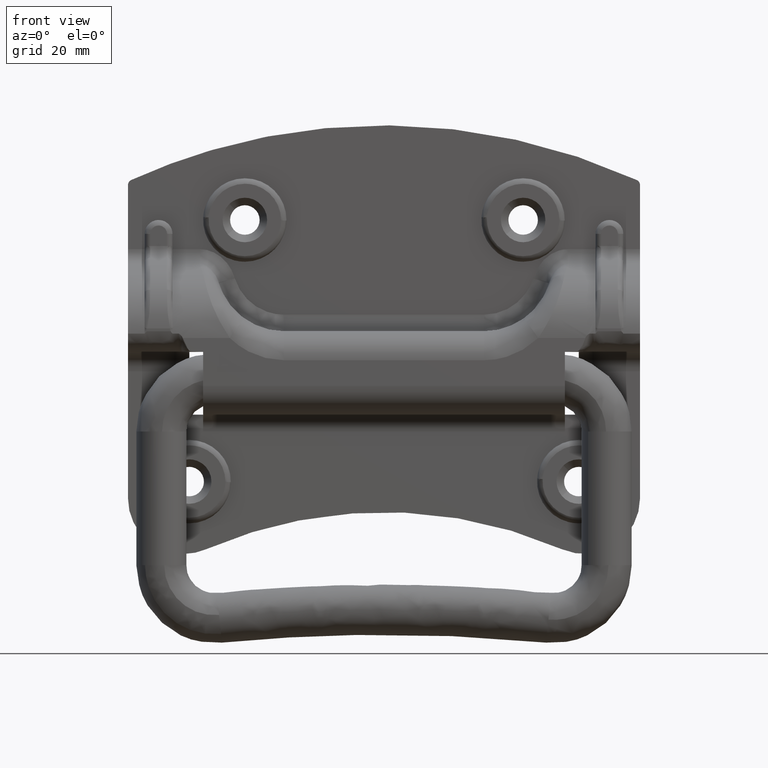
[diagram: clean part render]
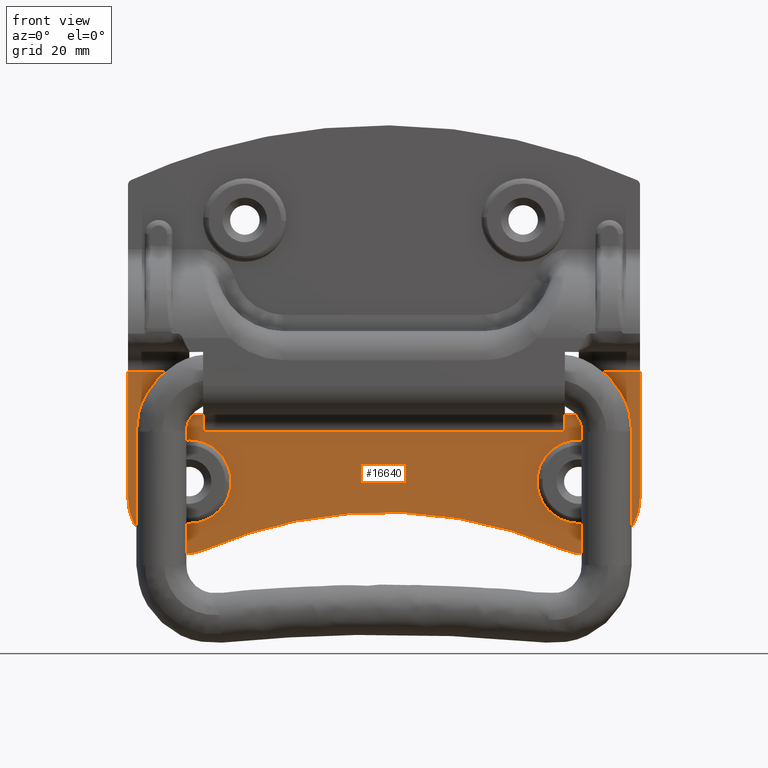
[diagram: same view with one face highlighted and labeled with its STEP entity id]
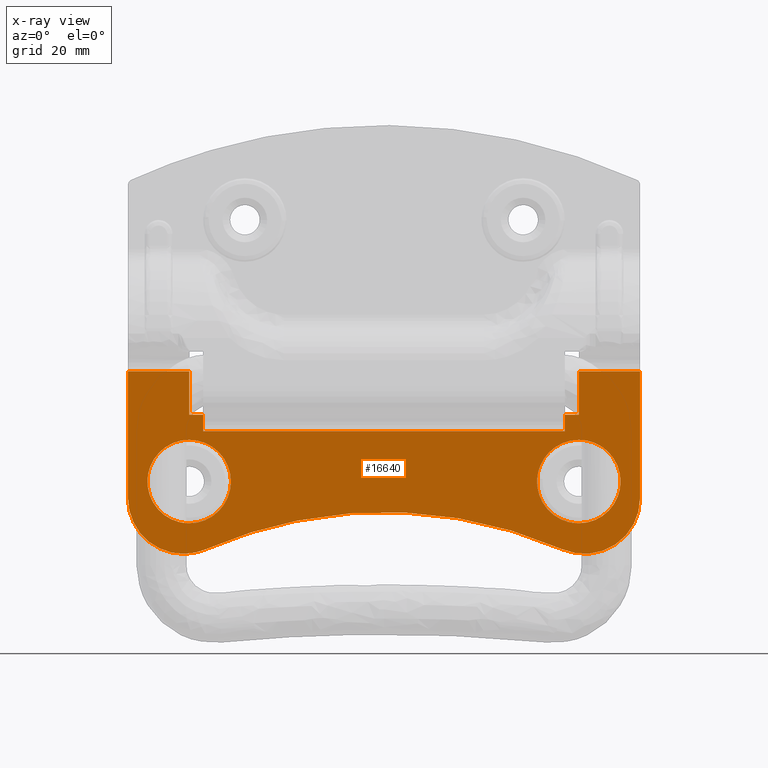
[diagram: x-ray of the same camera — body ghosted, the highlighted face saturated]
A machine part, front view. The second image highlights one B-rep face of the part: STEP entity #16640.
The next image is the same camera in x-ray: the body ghosted, the highlighted face saturated — about 0% of this face is hidden behind the body in this view.
In plain terms, the highlighted face is a freeform B-spline surface patch.
Its self-contained STEP definition (entity closure, byte-faithful):
#3819=CARTESIAN_POINT('',(-42.481742553789722,5.499999997269244,-17.977000612991219));
#3820=VERTEX_POINT('',#3819);
#3831=CARTESIAN_POINT('',(-35.0,5.499999999999840,-26.0));
#3832=VERTEX_POINT('',#3831);
#3833=CARTESIAN_POINT('',(-42.481742553789722,5.499999997269244,-17.977000612991219));
#3834=CARTESIAN_POINT('',(-42.508567905632333,5.499999997488488,-18.360567019971381));
#3835=CARTESIAN_POINT('',(-42.502192040018052,5.499999997986840,-19.260401928433112));
#3836=CARTESIAN_POINT('',(-42.251313222227097,5.499999998667409,-20.589821825501499));
#3837=CARTESIAN_POINT('',(-41.787228694354852,5.499999999207884,-21.755562374506152));
#3838=CARTESIAN_POINT('',(-41.158557307930572,5.499999999664079,-22.837995131761240));
#3839=CARTESIAN_POINT('',(-40.444065227010192,5.499999999983757,-23.710040896703291));
#3840=CARTESIAN_POINT('',(-39.500735324841997,5.500000000223445,-24.533585469607829));
#3841=CARTESIAN_POINT('',(-38.364103054491821,5.500000000366519,-25.262929288747820));
#3842=CARTESIAN_POINT('',(-36.826384232358777,5.500000000338392,-25.850936581439161));
#3843=CARTESIAN_POINT('',(-35.608817239031183,5.500000000140316,-26.000147889416109));
#3844=CARTESIAN_POINT('',(-35.0,5.499999999999840,-26.0));
#3845=B_SPLINE_CURVE_WITH_KNOTS('',3,(#3833,#3834,#3835,#3836,#3837,#3838,#3839,#3840,#3841,#3842,#3843,#3844),.UNSPECIFIED.,.F.,.U.,(4,1,1,1,1,1,1,1,1,4),(0.000000189409462,1.153520291072535,2.691602671902988,4.037426577012779,4.902583631816174,6.440603258899998,7.401905476487116,8.651584390666816,10.478049955776140,12.304480852552130),.UNSPECIFIED.);
#3846=EDGE_CURVE('',#3820,#3832,#3845,.T.);
#3848=CARTESIAN_POINT('',(-27.500592168472402,5.499999997308239,-18.594245299203291));
#3849=VERTEX_POINT('',#3848);
#3850=CARTESIAN_POINT('',(-35.0,5.499999999999840,-26.0));
#3851=CARTESIAN_POINT('',(-34.147724870356562,5.500000000000066,-26.000646562091440));
#3852=CARTESIAN_POINT('',(-32.930846841209387,5.499999999923587,-25.790145493146280));
#3853=CARTESIAN_POINT('',(-31.226480867853361,5.499999999651458,-25.041515176178368));
#3854=CARTESIAN_POINT('',(-30.048480971382990,5.499999999349228,-24.209751335453909));
#3855=CARTESIAN_POINT('',(-28.870580894520518,5.499999998883136,-22.927523010932230));
#3856=CARTESIAN_POINT('',(-28.056447777584470,5.499999998370964,-21.518321247791580));
#3857=CARTESIAN_POINT('',(-27.598367366284769,5.499999997805723,-19.962646614729749));
#3858=CARTESIAN_POINT('',(-27.505926764169139,5.499999997462896,-19.020279163105648));
#3859=CARTESIAN_POINT('',(-27.500592168472402,5.499999997308239,-18.594245299203291));
#3860=B_SPLINE_CURVE_WITH_KNOTS('',3,(#3850,#3851,#3852,#3853,#3854,#3855,#3856,#3857,#3858,#3859),.UNSPECIFIED.,.F.,.U.,(4,1,1,1,1,1,1,4),(0.000000170211331,2.556484266738611,3.652125915543310,5.569496617553640,6.847696757078398,8.856402364429144,10.408582803983020,11.686796831997800),.UNSPECIFIED.);
#3861=EDGE_CURVE('',#3832,#3849,#3860,.T.);
#3944=CARTESIAN_POINT('',(-35.0,5.499999999999840,-11.0));
#3945=VERTEX_POINT('',#3944);
#3946=CARTESIAN_POINT('',(-27.500592168472402,5.499999997308239,-18.594245299203291));
#3947=CARTESIAN_POINT('',(-27.494307283949841,5.499999997595918,-18.099490043975589));
#3948=CARTESIAN_POINT('',(-27.572191845783991,5.499999998097677,-17.201648577864169));
#3949=CARTESIAN_POINT('',(-27.971367982742670,5.499999998855806,-15.734734194082890));
#3950=CARTESIAN_POINT('',(-28.719016406471699,5.499999999538116,-14.262059739924050));
#3951=CARTESIAN_POINT('',(-29.804795664639020,5.500000000011758,-13.017498248203641));
#3952=CARTESIAN_POINT('',(-31.064991323620340,5.500000000279339,-12.060625495865640));
#3953=CARTESIAN_POINT('',(-32.209481896756238,5.500000000345722,-11.496887437577680));
#3954=CARTESIAN_POINT('',(-33.577500364817809,5.500000000266654,-11.096871651193450));
#3955=CARTESIAN_POINT('',(-34.443340880443003,5.500000000126248,-10.999895891736850));
#3956=CARTESIAN_POINT('',(-35.0,5.499999999999840,-11.0));
#3957=B_SPLINE_CURVE_WITH_KNOTS('',3,(#3946,#3947,#3948,#3949,#3950,#3951,#3952,#3953,#3954,#3955,#3956),.UNSPECIFIED.,.F.,.U.,(4,1,1,1,1,1,1,1,4),(0.000000184044325,1.484378964615754,2.690496661113842,4.546016861821558,6.401477274290186,7.607601255560499,9.277583112677187,10.205342741398139,11.875295939521900),.UNSPECIFIED.);
#3958=EDGE_CURVE('',#3849,#3945,#3957,.T.);
#3960=CARTESIAN_POINT('',(-35.0,5.499999999999840,-11.0));
#3961=CARTESIAN_POINT('',(-35.469061929922958,5.499999999999852,-10.999964253768210));
#3962=CARTESIAN_POINT('',(-36.495134251029107,5.499999999962074,-11.096527352311091));
#3963=CARTESIAN_POINT('',(-38.158454959819103,5.499999999761490,-11.609042753803530));
#3964=CARTESIAN_POINT('',(-39.621327582735482,5.499999999409480,-12.508328945613380));
#3965=CARTESIAN_POINT('',(-40.876887135583573,5.499999998923594,-13.750078756935860));
#3966=CARTESIAN_POINT('',(-41.605226343724837,5.499999998488358,-14.861978458047400));
#3967=CARTESIAN_POINT('',(-42.228381081944583,5.499999997917858,-16.319720751102700));
#3968=CARTESIAN_POINT('',(-42.432970221000268,5.499999997543953,-17.275055523593259));
#3969=CARTESIAN_POINT('',(-42.481742553789722,5.499999997269244,-17.977000612991219));
#3970=B_SPLINE_CURVE_WITH_KNOTS('',3,(#3960,#3961,#3962,#3963,#3964,#3965,#3966,#3967,#3968,#3969),.UNSPECIFIED.,.F.,.U.,(4,1,1,1,1,1,1,4),(0.000000162507561,1.407199140064691,3.078257524233408,5.189087780840575,6.508269569357324,8.355257851063371,9.146813726459770,11.257612765952590),.UNSPECIFIED.);
#3971=EDGE_CURVE('',#3945,#3820,#3970,.T.);
#4228=CARTESIAN_POINT('',(27.518257446210288,5.499999997269244,-17.977000612991219));
#4229=VERTEX_POINT('',#4228);
#4240=CARTESIAN_POINT('',(35.0,5.499999999999840,-26.0));
#4241=VERTEX_POINT('',#4240);
#4242=CARTESIAN_POINT('',(27.518257446210288,5.499999997269244,-17.977000612991219));
#4243=CARTESIAN_POINT('',(27.457321443380039,5.499999997762714,-18.840087502559118));
#4244=CARTESIAN_POINT('',(27.605780159770831,5.499999998519030,-20.263350544882879));
#4245=CARTESIAN_POINT('',(28.260059545677510,5.499999999264047,-21.876343133846429));
#4246=CARTESIAN_POINT('',(28.940408868933240,5.499999999712206,-22.965676069315570));
#4247=CARTESIAN_POINT('',(29.753603382222970,5.500000000054807,-23.920260586449380));
#4248=CARTESIAN_POINT('',(30.881312705160092,5.500000000300607,-24.830971232588521));
#4249=CARTESIAN_POINT('',(32.084943979042727,5.500000000366060,-25.448697091644060));
#4250=CARTESIAN_POINT('',(33.462019037358793,5.500000000291413,-25.886216419718789));
#4251=CARTESIAN_POINT('',(34.391177928327060,5.500000000140356,-26.000139633820140));
#4252=CARTESIAN_POINT('',(35.0,5.499999999999840,-26.0));
#4253=B_SPLINE_CURVE_WITH_KNOTS('',3,(#4242,#4243,#4244,#4245,#4246,#4247,#4248,#4249,#4250,#4251,#4252),.UNSPECIFIED.,.F.,.U.,(4,1,1,1,1,1,1,1,4),(0.000000189392864,2.595466828539264,4.229671591054864,5.190959761615572,6.440603258894309,7.978671417311456,9.516748037607719,10.478049955775690,12.304480852552119),.UNSPECIFIED.);
#4254=EDGE_CURVE('',#4229,#4241,#4253,.T.);
#4256=CARTESIAN_POINT('',(42.499407831527598,5.499999997308239,-18.594245299203291));
#4257=VERTEX_POINT('',#4256);
#4258=CARTESIAN_POINT('',(35.0,5.499999999999840,-26.0));
#4259=CARTESIAN_POINT('',(35.486934809167813,5.499999999999846,-26.000034943229409));
#4260=CARTESIAN_POINT('',(36.552139430473552,5.499999999962046,-25.895977799657381));
#4261=CARTESIAN_POINT('',(38.156727081679790,5.499999999774953,-25.381320112761379));
#4262=CARTESIAN_POINT('',(39.543889881234293,5.499999999467416,-24.534929893428231));
#4263=CARTESIAN_POINT('',(40.812216128005460,5.499999999033813,-23.342112875269478));
#4264=CARTESIAN_POINT('',(41.753863072061982,5.499999998523649,-21.938414605085491));
#4265=CARTESIAN_POINT('',(42.358189819376229,5.499999997904929,-20.236000905912551));
#4266=CARTESIAN_POINT('',(42.492604419223859,5.499999997507264,-19.142020053999708));
#4267=CARTESIAN_POINT('',(42.499407831527598,5.499999997308239,-18.594245299203291));
#4268=B_SPLINE_CURVE_WITH_KNOTS('',3,(#4258,#4259,#4260,#4261,#4262,#4263,#4264,#4265,#4266,#4267),.UNSPECIFIED.,.F.,.U.,(4,1,1,1,1,1,1,4),(0.000000170205601,1.460820458666598,3.195613833529805,5.021681826891865,6.299866925079172,8.399877557317442,10.043351114334969,11.686796831997659),.UNSPECIFIED.);
#4269=EDGE_CURVE('',#4241,#4257,#4268,.T.);
#4351=CARTESIAN_POINT('',(35.0,5.499999999999840,-11.0));
#4352=VERTEX_POINT('',#4351);
#4353=CARTESIAN_POINT('',(42.499407831527598,5.499999997308239,-18.594245299203291));
#4354=CARTESIAN_POINT('',(42.508668396823083,5.499999997721852,-17.882986131036279));
#4355=CARTESIAN_POINT('',(42.362680112918241,5.499999998333829,-16.767961928029070));
#4356=CARTESIAN_POINT('',(41.795218792944063,5.499999999097955,-15.224608272269800));
#4357=CARTESIAN_POINT('',(40.998711365618213,5.499999999689720,-13.889286343354719));
#4358=CARTESIAN_POINT('',(39.917705769084009,5.500000000093593,-12.767205297760681));
#4359=CARTESIAN_POINT('',(38.662883469015199,5.500000000305267,-11.908969107323101));
#4360=CARTESIAN_POINT('',(37.102645098462482,5.500000000355120,-11.211003447123231));
#4361=CARTESIAN_POINT('',(35.804124687223123,5.500000000182593,-10.999484870945039));
#4362=CARTESIAN_POINT('',(35.0,5.499999999999840,-11.0));
#4363=B_SPLINE_CURVE_WITH_KNOTS('',3,(#4353,#4354,#4355,#4356,#4357,#4358,#4359,#4360,#4361,#4362),.UNSPECIFIED.,.F.,.U.,(4,1,1,1,1,1,1,4),(0.000000184038882,2.133834974312626,3.339935586696347,4.917153398430021,6.772628925661738,7.978693161514514,9.463131408615009,11.875295939521900),.UNSPECIFIED.);
#4364=EDGE_CURVE('',#4257,#4352,#4363,.T.);
#4366=CARTESIAN_POINT('',(35.0,5.499999999999840,-11.0));
#4367=CARTESIAN_POINT('',(34.413670676507110,5.499999999999874,-10.999894813643280));
#4368=CARTESIAN_POINT('',(33.241052464769403,5.499999999945771,-11.138174216093750));
#4369=CARTESIAN_POINT('',(31.495188388766071,5.499999999695006,-11.778884716447360));
#4370=CARTESIAN_POINT('',(30.107177813699249,5.499999999320279,-12.736450776388439));
#4371=CARTESIAN_POINT('',(29.144992657444242,5.499999998915770,-13.769833076752080));
#4372=CARTESIAN_POINT('',(28.444844877306561,5.499999998518190,-14.785787004195400));
#4373=CARTESIAN_POINT('',(27.805894460671549,5.499999997985923,-16.145755462397339));
#4374=CARTESIAN_POINT('',(27.565057055219889,5.499999997532555,-17.304332961132229));
#4375=CARTESIAN_POINT('',(27.518257446210288,5.499999997269244,-17.977000612991219));
#4376=B_SPLINE_CURVE_WITH_KNOTS('',3,(#4366,#4367,#4368,#4369,#4370,#4371,#4372,#4373,#4374,#4375),.UNSPECIFIED.,.F.,.U.,(4,1,1,1,1,1,1,4),(0.000000162488385,1.758978933395257,3.518010393839347,5.540909743650097,6.772132799290824,7.739605501221990,9.234778077383478,11.257612765952601),.UNSPECIFIED.);
#4377=EDGE_CURVE('',#4352,#4229,#4376,.T.);
#5454=CARTESIAN_POINT('',(-46.000500000000002,5.499999999999840,-21.500255710489149));
#5455=VERTEX_POINT('',#5454);
#5480=CARTESIAN_POINT('',(-32.000444444444447,5.499999999999840,-30.665382853768151));
#5481=VERTEX_POINT('',#5480);
#5487=CARTESIAN_POINT('',(-46.000500000000002,5.499999999999840,-21.500255710489149));
#5488=CARTESIAN_POINT('',(-46.000699082443383,5.499999999999853,-22.326223741991441));
#5489=CARTESIAN_POINT('',(-45.813960144823163,5.499999999999814,-23.823201004922879));
#5490=CARTESIAN_POINT('',(-45.034467095497689,5.499999999999867,-25.968959344305048));
#5491=CARTESIAN_POINT('',(-43.809704883099641,5.499999999999838,-27.900125607014729));
#5492=CARTESIAN_POINT('',(-42.196719274704670,5.499999999999844,-29.449931846392790));
#5493=CARTESIAN_POINT('',(-40.515667995647611,5.499999999999842,-30.477295092017641));
#5494=CARTESIAN_POINT('',(-38.639142737717812,5.499999999999846,-31.223377484754550));
#5495=CARTESIAN_POINT('',(-36.791421110349887,5.499999999999838,-31.539063745497540));
#5496=CARTESIAN_POINT('',(-34.412113020029132,5.499999999999847,-31.462618128273920));
#5497=CARTESIAN_POINT('',(-32.946549644554381,5.499999999999841,-31.078917052722531));
#5498=CARTESIAN_POINT('',(-32.000444444444447,5.499999999999840,-30.665382853768151));
#5499=B_SPLINE_CURVE_WITH_KNOTS('',3,(#5487,#5488,#5489,#5490,#5491,#5492,#5493,#5494,#5495,#5496,#5497,#5498),.UNSPECIFIED.,.F.,.U.,(4,1,1,1,1,1,1,1,1,4),(0.000000037315907,2.477897111639948,4.491229526797056,6.814320790391898,9.292223452452822,11.150622587147421,12.699324482743179,15.332160783704881,16.726010618363869,19.823390429529901),.UNSPECIFIED.);
#5500=EDGE_CURVE('',#5455,#5481,#5499,.T.);
#5519=CARTESIAN_POINT('',(32.0,5.499999999999840,-30.665188880706548));
#5520=VERTEX_POINT('',#5519);
#5521=CARTESIAN_POINT('',(32.0,5.499999999999840,-30.665188880706548));
#5522=CARTESIAN_POINT('',(28.149877662209761,5.499999999999795,-28.984546334171728));
#5523=CARTESIAN_POINT('',(22.053582890137552,5.499999999999902,-26.878172871914341));
#5524=CARTESIAN_POINT('',(11.987498182294400,5.499999999999771,-24.709590968366701));
#5525=CARTESIAN_POINT('',(3.518595845374078,5.499999999999862,-23.876439358028890));
#5526=CARTESIAN_POINT('',(-5.576675882777860,5.499999999999836,-24.052120371881269));
#5527=CARTESIAN_POINT('',(-13.165114267997421,5.499999999999848,-24.946714394380471));
#5528=CARTESIAN_POINT('',(-22.219508810884271,5.499999999999839,-26.927821066044739));
#5529=CARTESIAN_POINT('',(-28.307474574667008,5.499999999999839,-29.053333467659169));
#5530=CARTESIAN_POINT('',(-32.000444444444447,5.499999999999840,-30.665382853768151));
#5531=B_SPLINE_CURVE_WITH_KNOTS('',3,(#5521,#5522,#5523,#5524,#5525,#5526,#5527,#5528,#5529,#5530),.UNSPECIFIED.,.F.,.U.,(4,1,1,1,1,1,1,4),(0.000000014812841,12.602797947623131,19.290008543606600,30.864033936881832,38.065593684698733,46.553200325970813,53.754810377323281,65.843208657040549),.UNSPECIFIED.);
#5532=EDGE_CURVE('',#5520,#5481,#5531,.T.);
#5591=CARTESIAN_POINT('',(46.0,5.499999999999840,-21.500037490794899));
#5592=VERTEX_POINT('',#5591);
#5598=CARTESIAN_POINT('',(32.0,5.499999999999840,-30.665188880706548));
#5599=CARTESIAN_POINT('',(32.993388785730623,5.499999999999844,-31.099435587702221));
#5600=CARTESIAN_POINT('',(34.767943037139283,5.499999999999840,-31.549391572529881));
#5601=CARTESIAN_POINT('',(37.052174005048947,5.499999999999841,-31.498636786339819));
#5602=CARTESIAN_POINT('',(38.928654501381331,5.499999999999840,-31.117870249352130));
#5603=CARTESIAN_POINT('',(40.424535736425000,5.499999999999843,-30.523351818632481));
#5604=CARTESIAN_POINT('',(41.836636647848707,5.499999999999838,-29.660036462746369));
#5605=CARTESIAN_POINT('',(43.076593254612533,5.499999999999842,-28.640804303210832));
#5606=CARTESIAN_POINT('',(44.421186503202307,5.499999999999842,-27.059812476044669));
#5607=CARTESIAN_POINT('',(45.416206674820216,5.499999999999843,-25.112274607651930));
#5608=CARTESIAN_POINT('',(45.911879755109133,5.499999999999838,-23.151935463111279));
#5609=CARTESIAN_POINT('',(46.000020687255429,5.499999999999842,-22.016250497096060));
#5610=CARTESIAN_POINT('',(46.0,5.499999999999840,-21.500037490794899));
#5611=B_SPLINE_CURVE_WITH_KNOTS('',3,(#5598,#5599,#5600,#5601,#5602,#5603,#5604,#5605,#5606,#5607,#5608,#5609,#5610),.UNSPECIFIED.,.F.,.U.,(4,1,1,1,1,1,1,1,1,1,4),(0.000000037313963,3.252260517609972,5.420446492675625,6.814299952634197,8.982463758506379,10.221398112937729,11.770056297229740,13.783405473842430,16.416208451072311,18.274673899931880,19.823329811552089),.UNSPECIFIED.);
#5612=EDGE_CURVE('',#5520,#5592,#5611,.T.);
#11880=CARTESIAN_POINT('',(35.0,5.499999999999799,1.300000000000000));
#11881=VERTEX_POINT('',#11880);
#11896=CARTESIAN_POINT('',(46.0,5.499999999999799,1.300000000000000));
#11897=VERTEX_POINT('',#11896);
#11898=CARTESIAN_POINT('',(46.0,5.499999999999799,1.300000000000000));
#11899=CARTESIAN_POINT('',(35.0,5.499999999999799,1.300000000000000));
#11900=QUASI_UNIFORM_CURVE('',1,(#11898,#11899),.UNSPECIFIED.,.F.,.U.);
#11901=EDGE_CURVE('',#11897,#11881,#11900,.T.);
#11941=CARTESIAN_POINT('',(-35.000500000000002,5.499999999999799,1.300000000000000));
#11942=VERTEX_POINT('',#11941);
#11963=CARTESIAN_POINT('',(-46.000500000000002,5.499999999999799,1.300000000000000));
#11964=VERTEX_POINT('',#11963);
#11977=CARTESIAN_POINT('',(-35.000500000000002,5.499999999999799,1.300000000000000));
#11978=CARTESIAN_POINT('',(-46.000500000000002,5.499999999999799,1.300000000000000));
#11979=QUASI_UNIFORM_CURVE('',1,(#11977,#11978),.UNSPECIFIED.,.F.,.U.);
#11980=EDGE_CURVE('',#11942,#11964,#11979,.T.);
#15482=CARTESIAN_POINT('',(32.500000000000000,5.499999999999799,-6.560612308660391));
#15483=VERTEX_POINT('',#15482);
#15511=CARTESIAN_POINT('',(-32.500500000000002,5.499999999999840,-6.560612308660430));
#15512=VERTEX_POINT('',#15511);
#15711=CARTESIAN_POINT('',(32.500000000000000,5.499999999999730,-6.500000000000090));
#15712=VERTEX_POINT('',#15711);
#15713=CARTESIAN_POINT('',(32.500000000000000,5.499999999999799,-6.560612308660391));
#15714=CARTESIAN_POINT('',(32.500000000000000,5.499999999999730,-6.500000000000090));
#15715=QUASI_UNIFORM_CURVE('',1,(#15713,#15714),.UNSPECIFIED.,.F.,.U.);
#15716=EDGE_CURVE('',#15483,#15712,#15715,.T.);
#15747=CARTESIAN_POINT('',(-32.500500000000002,5.499999999999730,-6.500000000000090));
#15748=VERTEX_POINT('',#15747);
#15754=CARTESIAN_POINT('',(-32.500500000000002,5.499999999999840,-6.560612308660430));
#15755=CARTESIAN_POINT('',(-32.500500000000002,5.499999999999730,-6.500000000000090));
#15756=QUASI_UNIFORM_CURVE('',1,(#15754,#15755),.UNSPECIFIED.,.F.,.U.);
#15757=EDGE_CURVE('',#15512,#15748,#15756,.T.);
#15767=CARTESIAN_POINT('',(35.0,5.499999999999840,-6.500000000000090));
#15768=VERTEX_POINT('',#15767);
#15782=CARTESIAN_POINT('',(35.0,5.499999999999840,-6.500000000000090));
#15783=CARTESIAN_POINT('',(32.500000000000000,5.499999999999730,-6.500000000000090));
#15784=QUASI_UNIFORM_CURVE('',1,(#15782,#15783),.UNSPECIFIED.,.F.,.U.);
#15785=EDGE_CURVE('',#15768,#15712,#15784,.T.);
#15807=CARTESIAN_POINT('',(35.0,5.499999999999799,1.300000000000000));
#15808=CARTESIAN_POINT('',(35.0,5.499999999999840,-6.500000000000090));
#15809=QUASI_UNIFORM_CURVE('',1,(#15807,#15808),.UNSPECIFIED.,.F.,.U.);
#15810=EDGE_CURVE('',#11881,#15768,#15809,.T.);
#15821=CARTESIAN_POINT('',(-35.000500000000002,5.499999999999840,-6.500000000000090));
#15822=VERTEX_POINT('',#15821);
#15823=CARTESIAN_POINT('',(-35.000500000000002,5.499999999999840,-6.500000000000090));
#15824=CARTESIAN_POINT('',(-32.500500000000002,5.499999999999730,-6.500000000000090));
#15825=QUASI_UNIFORM_CURVE('',1,(#15823,#15824),.UNSPECIFIED.,.F.,.U.);
#15826=EDGE_CURVE('',#15822,#15748,#15825,.T.);
#15861=CARTESIAN_POINT('',(-35.000500000000002,5.499999999999799,1.300000000000000));
#15862=CARTESIAN_POINT('',(-35.000500000000002,5.499999999999840,-6.500000000000090));
#15863=QUASI_UNIFORM_CURVE('',1,(#15861,#15862),.UNSPECIFIED.,.F.,.U.);
#15864=EDGE_CURVE('',#11942,#15822,#15863,.T.);
#15875=CARTESIAN_POINT('',(32.500000000000000,5.499999999999799,-9.500000000000000));
#15876=VERTEX_POINT('',#15875);
#15877=CARTESIAN_POINT('',(32.500000000000000,5.499999999999799,-9.500000000000000));
#15878=CARTESIAN_POINT('',(32.500000000000000,5.499999999999799,-6.560612308660391));
#15879=QUASI_UNIFORM_CURVE('',1,(#15877,#15878),.UNSPECIFIED.,.F.,.U.);
#15880=EDGE_CURVE('',#15876,#15483,#15879,.T.);
#15994=CARTESIAN_POINT('',(-32.500500000000002,5.499999999999840,-9.500000000000000));
#15995=VERTEX_POINT('',#15994);
#15996=CARTESIAN_POINT('',(-32.500500000000002,5.499999999999840,-9.500000000000000));
#15997=CARTESIAN_POINT('',(-32.500500000000002,5.499999999999840,-6.560612308660430));
#15998=QUASI_UNIFORM_CURVE('',1,(#15996,#15997),.UNSPECIFIED.,.F.,.U.);
#15999=EDGE_CURVE('',#15995,#15512,#15998,.T.);
#16135=CARTESIAN_POINT('',(32.500000000000000,5.499999999999799,-9.500000000000000));
#16136=CARTESIAN_POINT('',(-32.500500000000002,5.499999999999840,-9.500000000000000));
#16137=QUASI_UNIFORM_CURVE('',1,(#16135,#16136),.UNSPECIFIED.,.F.,.U.);
#16138=EDGE_CURVE('',#15876,#15995,#16137,.T.);
#16504=CARTESIAN_POINT('',(46.0,5.499999999999799,1.300000000000000));
#16505=CARTESIAN_POINT('',(46.0,5.499999999999840,-21.500037490794899));
#16506=QUASI_UNIFORM_CURVE('',1,(#16504,#16505),.UNSPECIFIED.,.F.,.U.);
#16507=EDGE_CURVE('',#11897,#5592,#16506,.T.);
#16535=CARTESIAN_POINT('',(-46.000500000000002,5.499999999999799,1.300000000000000));
#16536=CARTESIAN_POINT('',(-46.000500000000002,5.499999999999840,-21.500255710489149));
#16537=QUASI_UNIFORM_CURVE('',1,(#16535,#16536),.UNSPECIFIED.,.F.,.U.);
#16538=EDGE_CURVE('',#11964,#5455,#16537,.T.);
#16605=CARTESIAN_POINT('',(-50.595924796685182,5.499999999999799,-33.137569091599353));
#16606=CARTESIAN_POINT('',(-50.595924796685182,5.499999999999799,2.938323192760030));
#16607=CARTESIAN_POINT('',(50.595427264330887,5.499999999999799,-33.137569091599353));
#16608=CARTESIAN_POINT('',(50.595427264330887,5.499999999999799,2.938323192760030));
#16609=B_SPLINE_SURFACE_WITH_KNOTS('',1,1,((#16605,#16607),(#16606,#16608)),.UNSPECIFIED.,.F.,.F.,.U.,(2,2),(2,2),(0.0,36.075892284359377),(0.0,101.191352061016100),.UNSPECIFIED.);
#16610=ORIENTED_EDGE('',*,*,#5532,.F.);
#16611=ORIENTED_EDGE('',*,*,#5612,.T.);
#16612=ORIENTED_EDGE('',*,*,#16507,.F.);
#16613=ORIENTED_EDGE('',*,*,#11901,.T.);
#16614=ORIENTED_EDGE('',*,*,#15810,.T.);
#16615=ORIENTED_EDGE('',*,*,#15785,.T.);
#16616=ORIENTED_EDGE('',*,*,#15716,.F.);
#16617=ORIENTED_EDGE('',*,*,#15880,.F.);
#16618=ORIENTED_EDGE('',*,*,#16138,.T.);
#16619=ORIENTED_EDGE('',*,*,#15999,.T.);
#16620=ORIENTED_EDGE('',*,*,#15757,.T.);
#16621=ORIENTED_EDGE('',*,*,#15826,.F.);
#16622=ORIENTED_EDGE('',*,*,#15864,.F.);
#16623=ORIENTED_EDGE('',*,*,#11980,.T.);
#16624=ORIENTED_EDGE('',*,*,#16538,.T.);
#16625=ORIENTED_EDGE('',*,*,#5500,.T.);
#16626=EDGE_LOOP('',(#16610,#16611,#16612,#16613,#16614,#16615,#16616,#16617,#16618,#16619,#16620,#16621,#16622,#16623,#16624,#16625));
#16627=FACE_OUTER_BOUND('',#16626,.T.);
#16628=ORIENTED_EDGE('',*,*,#4269,.F.);
#16629=ORIENTED_EDGE('',*,*,#4254,.F.);
#16630=ORIENTED_EDGE('',*,*,#4377,.F.);
#16631=ORIENTED_EDGE('',*,*,#4364,.F.);
#16632=EDGE_LOOP('',(#16628,#16629,#16630,#16631));
#16633=FACE_BOUND('',#16632,.T.);
#16634=ORIENTED_EDGE('',*,*,#3861,.F.);
#16635=ORIENTED_EDGE('',*,*,#3846,.F.);
#16636=ORIENTED_EDGE('',*,*,#3971,.F.);
#16637=ORIENTED_EDGE('',*,*,#3958,.F.);
#16638=EDGE_LOOP('',(#16634,#16635,#16636,#16637));
#16639=FACE_BOUND('',#16638,.T.);
#16640=ADVANCED_FACE('',(#16627,#16633,#16639),#16609,.F.);